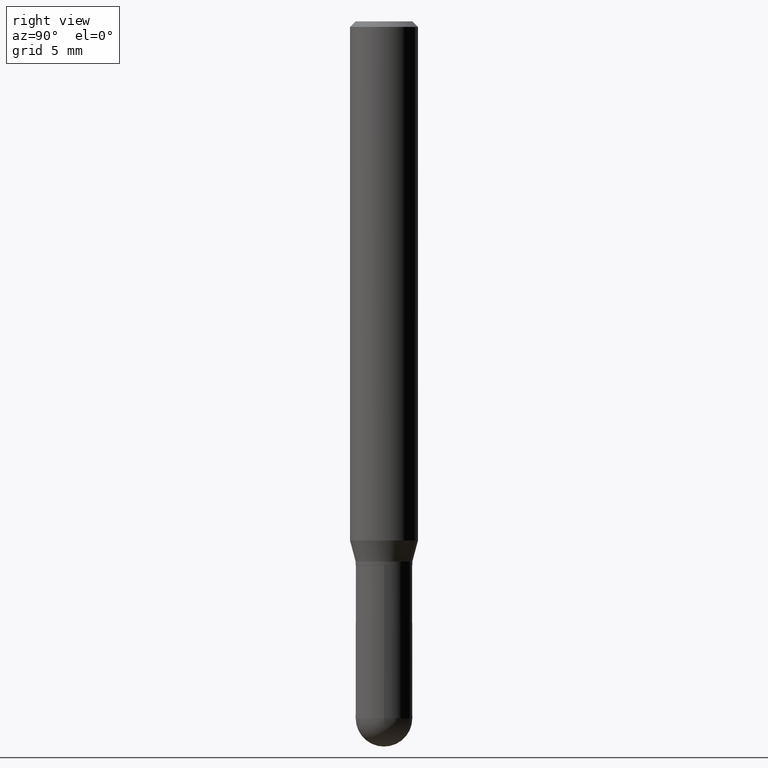
[diagram: clean part render]
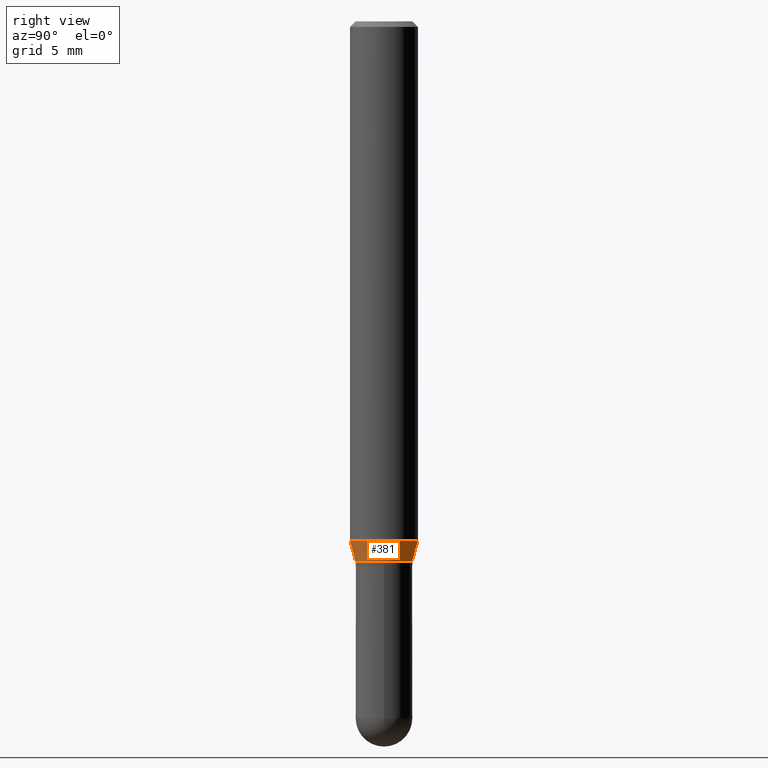
[diagram: same view with one face highlighted and labeled with its STEP entity id]
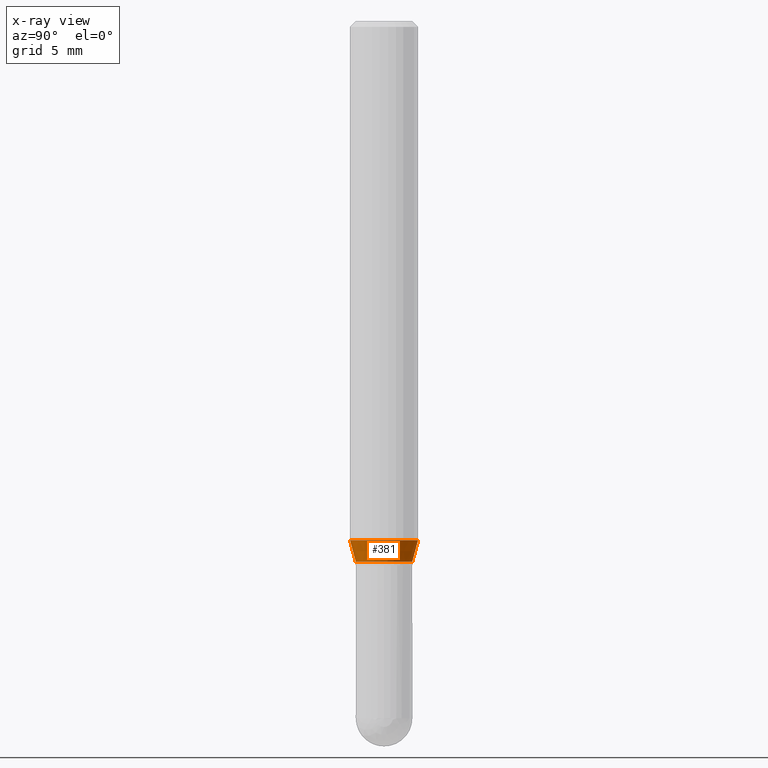
[diagram: x-ray of the same camera — body ghosted, the highlighted face saturated]
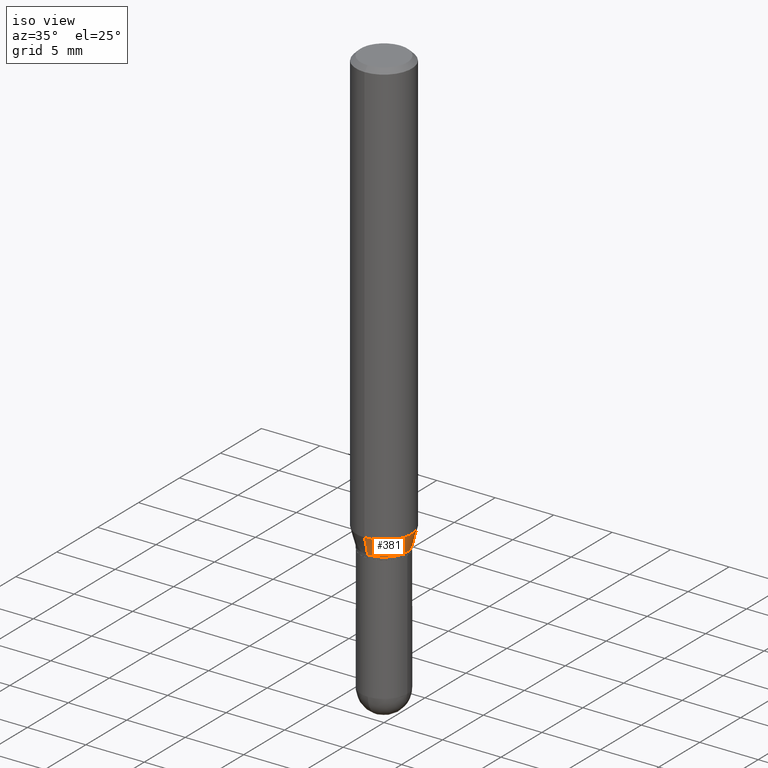
[diagram: same view with one face highlighted and labeled with its STEP entity id]
A machine part, right view. The second image highlights one B-rep face of the part: STEP entity #381.
The next image is the same camera in x-ray: the body ghosted, the highlighted face saturated — about 0% of this face is hidden behind the body in this view.
A second angle (iso view) of the same face is appended — the face is thin or edge-on in the first view.
In plain terms, the highlighted conical surface has half-angle 15 deg.
Its self-contained STEP definition (entity closure, byte-faithful):
#4 = DIRECTION ( 'NONE',  ( -2.445022562880343100E-29, 3.492120384654201603E-15, 1.000000000000000000 ) ) ;
#22 = CARTESIAN_POINT ( 'NONE',  ( -6.546527510330523012E-16, -0.09375000000000500988, -1.431593404861545515 ) ) ;
#39 = VERTEX_POINT ( 'NONE', #240 ) ;
#52 = CARTESIAN_POINT ( 'NONE',  ( 3.643083618691710816E-29, -5.203259373134759868E-15, -1.489999999999999991 ) ) ;
#58 = CARTESIAN_POINT ( 'NONE',  ( -5.453693851272583878E-16, -0.07810000000000484610, -1.489999999999999769 ) ) ;
#71 = CARTESIAN_POINT ( 'NONE',  ( 3.643083618691710816E-29, -5.203259373134759868E-15, -1.489999999999999991 ) ) ;
#97 = LINE ( 'NONE', #58, #443 ) ;
#109 = EDGE_CURVE ( 'NONE', #385, #39, #144, .T. ) ;
#115 = VERTEX_POINT ( 'NONE', #22 ) ;
#124 = DIRECTION ( 'NONE',  ( -2.445022562880343100E-29, 3.492120384654201603E-15, 1.000000000000000000 ) ) ;
#133 = DIRECTION ( 'NONE',  ( -1.807323732225326589E-15, -0.2588190451025176864, 0.9659258262890690894 ) ) ;
#142 = CARTESIAN_POINT ( 'NONE',  ( 5.549338766286719885E-16, 0.07809999999999443776, -1.490000000000000213 ) ) ;
#144 = LINE ( 'NONE', #142, #335 ) ;
#154 = CARTESIAN_POINT ( 'NONE',  ( 6.105338457019004099E-16, 0.07809999999999443776, -1.490000000000000213 ) ) ;
#159 = CIRCLE ( 'NONE', #319, 0.09375000000000001388 ) ;
#162 = ORIENTED_EDGE ( 'NONE', *, *, #507, .T. ) ;
#187 = EDGE_CURVE ( 'NONE', #387, #115, #97, .T. ) ;
#210 = AXIS2_PLACEMENT_3D ( 'NONE', #71, #270, #391 ) ;
#233 = CARTESIAN_POINT ( 'NONE',  ( 3.500278175757173363E-29, -4.999296511653519155E-15, -1.431593404861545737 ) ) ;
#235 = ORIENTED_EDGE ( 'NONE', *, *, #305, .F. ) ;
#240 = CARTESIAN_POINT ( 'NONE',  ( 6.661338147751288313E-16, 0.09374999999999500400, -1.431593404861545960 ) ) ;
#246 = DIRECTION ( 'NONE',  ( -6.982962677686265922E-15, -1.000000000000000000, 3.497884755011876582E-15 ) ) ;
#270 = DIRECTION ( 'NONE',  ( -2.445022562880343100E-29, 3.492120384654201603E-15, 1.000000000000000000 ) ) ;
#281 = EDGE_LOOP ( 'NONE', ( #162, #380, #235, #406 ) ) ;
#297 = DIRECTION ( 'NONE',  ( 1.839019923739596765E-15, 0.2588190451025244587, 0.9659258262890673130 ) ) ;
#305 = EDGE_CURVE ( 'NONE', #115, #39, #159, .T. ) ;
#314 = CARTESIAN_POINT ( 'NONE',  ( -5.453693851272583878E-16, -0.07810000000000484610, -1.489999999999999769 ) ) ;
#316 = FACE_OUTER_BOUND ( 'NONE', #281, .T. ) ;
#319 = AXIS2_PLACEMENT_3D ( 'NONE', #233, #4, #434 ) ;
#335 = VECTOR ( 'NONE', #297, 39.37007874015748143 ) ;
#380 = ORIENTED_EDGE ( 'NONE', *, *, #109, .T. ) ;
#381 = ADVANCED_FACE ( 'NONE', ( #316 ), #428, .T. ) ;
#385 = VERTEX_POINT ( 'NONE', #154 ) ;
#387 = VERTEX_POINT ( 'NONE', #314 ) ;
#391 = DIRECTION ( 'NONE',  ( -6.982962677686265922E-15, -1.000000000000000000, 3.497884755011876582E-15 ) ) ;
#406 = ORIENTED_EDGE ( 'NONE', *, *, #187, .F. ) ;
#413 = AXIS2_PLACEMENT_3D ( 'NONE', #52, #124, #246 ) ;
#428 = CONICAL_SURFACE ( 'NONE', #210, 0.07809999999999964193, 0.2617993877991497409 ) ;
#434 = DIRECTION ( 'NONE',  ( -6.982962677686265922E-15, -1.000000000000000000, 2.913971193241880372E-15 ) ) ;
#443 = VECTOR ( 'NONE', #133, 39.37007874015748854 ) ;
#469 = CIRCLE ( 'NONE', #413, 0.07809999999999964193 ) ;
#507 = EDGE_CURVE ( 'NONE', #387, #385, #469, .T. ) ;